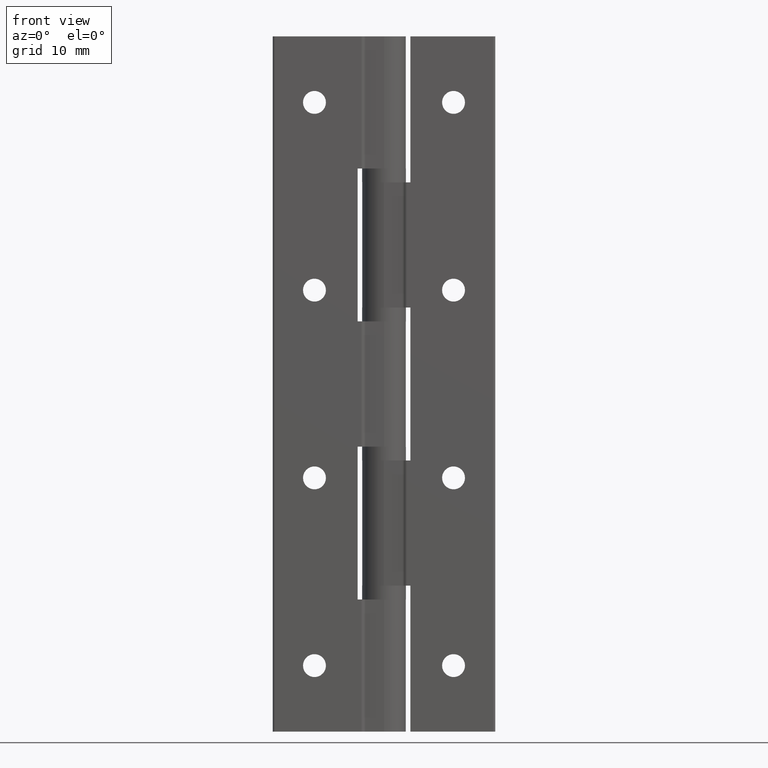
[diagram: clean part render]
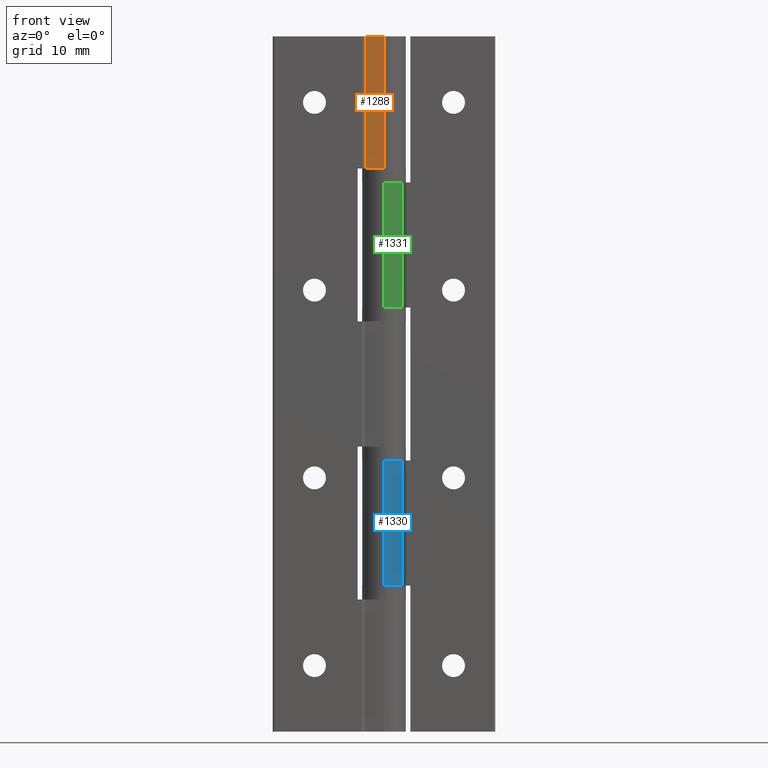
[diagram: same view with three faces highlighted in distinct colors, each labeled with its STEP entity id]
A machine part, front view with three faces highlighted in distinct colors.
Their STEP definitions:

[orange] entity #1288 — the highlighted planar face has unit normal (-0, 1, 0).
#239=FACE_OUTER_BOUND('',#322,.T.);
#322=EDGE_LOOP('',(#979,#980,#981,#982));
#448=LINE('',#2009,#539);
#456=LINE('',#2039,#547);
#461=LINE('',#2052,#552);
#462=LINE('',#2053,#553);
#539=VECTOR('',#1579,2.68220700148449);
#547=VECTOR('',#1607,19.);
#552=VECTOR('',#1622,2.68220700148449);
#553=VECTOR('',#1623,19.);
#639=VERTEX_POINT('',#2006);
#640=VERTEX_POINT('',#2008);
#652=VERTEX_POINT('',#2037);
#655=VERTEX_POINT('',#2051);
#769=EDGE_CURVE('',#640,#639,#448,.T.);
#785=EDGE_CURVE('',#652,#639,#456,.T.);
#791=EDGE_CURVE('',#655,#652,#461,.T.);
#792=EDGE_CURVE('',#640,#655,#462,.T.);
#979=ORIENTED_EDGE('',*,*,#769,.T.);
#980=ORIENTED_EDGE('',*,*,#785,.F.);
#981=ORIENTED_EDGE('',*,*,#791,.F.);
#982=ORIENTED_EDGE('',*,*,#792,.F.);
#1253=PLANE('',#1390);
#1288=ADVANCED_FACE('',(#239),#1253,.F.);
#1390=AXIS2_PLACEMENT_3D('',#2050,#1620,#1621);
#1579=DIRECTION('',(1.,3.37691169050225E-17,0.));
#1607=DIRECTION('',(0.,0.,-1.));
#1620=DIRECTION('center_axis',(-3.37691169050225E-17,1.,0.));
#1621=DIRECTION('ref_axis',(1.,3.33066907387547E-17,0.));
#1622=DIRECTION('',(1.,3.37691169050225E-17,0.));
#1623=DIRECTION('',(0.,0.,1.));
#2006=CARTESIAN_POINT('',(1.53080849893419E-16,0.200000000000001,-19.));
#2008=CARTESIAN_POINT('',(-2.68220700148449,0.200000000000001,-19.));
#2009=CARTESIAN_POINT('',(-3.44110350074225,0.200000000000001,-19.));
#2037=CARTESIAN_POINT('',(1.53080849893419E-16,0.200000000000001,0.));
#2039=CARTESIAN_POINT('',(1.53080849893419E-16,0.200000000000001,0.));
#2050=CARTESIAN_POINT('Origin',(-3.08220700148449,0.200000000000001,0.));
#2051=CARTESIAN_POINT('',(-2.68220700148449,0.200000000000001,0.));
#2052=CARTESIAN_POINT('',(-1.54110350074224,0.200000000000001,0.));
#2053=CARTESIAN_POINT('',(-2.68220700148449,0.200000000000001,0.));

[blue] entity #1330 — the highlighted planar face has unit normal (0, 1, 0).
#281=FACE_OUTER_BOUND('',#390,.T.);
#390=EDGE_LOOP('',(#1151,#1152,#1153,#1154));
#485=LINE('',#2181,#576);
#497=LINE('',#2225,#588);
#505=LINE('',#2247,#596);
#508=LINE('',#2252,#599);
#576=VECTOR('',#1778,2.68220700148449);
#588=VECTOR('',#1814,2.68220700148449);
#596=VECTOR('',#1836,18.);
#599=VECTOR('',#1843,18.);
#693=VERTEX_POINT('',#2178);
#694=VERTEX_POINT('',#2180);
#713=VERTEX_POINT('',#2222);
#714=VERTEX_POINT('',#2224);
#844=EDGE_CURVE('',#694,#693,#485,.T.);
#865=EDGE_CURVE('',#714,#713,#497,.T.);
#877=EDGE_CURVE('',#714,#693,#505,.T.);
#880=EDGE_CURVE('',#694,#713,#508,.T.);
#1151=ORIENTED_EDGE('',*,*,#844,.T.);
#1152=ORIENTED_EDGE('',*,*,#877,.F.);
#1153=ORIENTED_EDGE('',*,*,#865,.T.);
#1154=ORIENTED_EDGE('',*,*,#880,.F.);
#1271=PLANE('',#1477);
#1330=ADVANCED_FACE('',(#281),#1271,.F.);
#1477=AXIS2_PLACEMENT_3D('',#2251,#1841,#1842);
#1778=DIRECTION('',(-1.,0.,0.));
#1814=DIRECTION('',(1.,0.,0.));
#1836=DIRECTION('',(0.,0.,1.));
#1841=DIRECTION('center_axis',(0.,1.,0.));
#1842=DIRECTION('ref_axis',(1.,0.,0.));
#1843=DIRECTION('',(0.,0.,-1.));
#2178=CARTESIAN_POINT('',(-4.11193712824135E-17,-3.15,-61.));
#2180=CARTESIAN_POINT('',(2.68220700148449,-3.15,-61.));
#2181=CARTESIAN_POINT('',(1.9,-3.15,-61.));
#2222=CARTESIAN_POINT('',(2.68220700148449,-3.15,-79.));
#2224=CARTESIAN_POINT('',(-4.11193712824135E-17,-3.15,-79.));
#2225=CARTESIAN_POINT('',(-2.7235997448302,-3.15,-79.));
#2247=CARTESIAN_POINT('',(-4.11193712824135E-17,-3.15,0.));
#2251=CARTESIAN_POINT('Origin',(0.,-3.15,0.));
#2252=CARTESIAN_POINT('',(2.68220700148449,-3.15,0.));

[green] entity #1331 — the highlighted planar face has unit normal (0, 1, 0).
#282=FACE_OUTER_BOUND('',#391,.T.);
#391=EDGE_LOOP('',(#1155,#1156,#1157,#1158));
#480=LINE('',#2165,#571);
#492=LINE('',#2204,#583);
#506=LINE('',#2249,#597);
#509=LINE('',#2254,#600);
#571=VECTOR('',#1763,2.68220700148449);
#583=VECTOR('',#1797,2.68220700148449);
#597=VECTOR('',#1839,18.);
#600=VECTOR('',#1846,18.);
#687=VERTEX_POINT('',#2162);
#688=VERTEX_POINT('',#2164);
#703=VERTEX_POINT('',#2201);
#704=VERTEX_POINT('',#2203);
#836=EDGE_CURVE('',#688,#687,#480,.T.);
#855=EDGE_CURVE('',#704,#703,#492,.T.);
#878=EDGE_CURVE('',#688,#703,#506,.T.);
#881=EDGE_CURVE('',#704,#687,#509,.T.);
#1155=ORIENTED_EDGE('',*,*,#836,.T.);
#1156=ORIENTED_EDGE('',*,*,#881,.F.);
#1157=ORIENTED_EDGE('',*,*,#855,.T.);
#1158=ORIENTED_EDGE('',*,*,#878,.F.);
#1272=PLANE('',#1478);
#1331=ADVANCED_FACE('',(#282),#1272,.F.);
#1478=AXIS2_PLACEMENT_3D('',#2253,#1844,#1845);
#1763=DIRECTION('',(1.,0.,0.));
#1797=DIRECTION('',(-1.,0.,0.));
#1839=DIRECTION('',(0.,0.,1.));
#1844=DIRECTION('center_axis',(0.,1.,0.));
#1845=DIRECTION('ref_axis',(1.,0.,0.));
#1846=DIRECTION('',(0.,0.,-1.));
#2162=CARTESIAN_POINT('',(2.68220700148449,-3.15,-39.));
#2164=CARTESIAN_POINT('',(-4.11193712824135E-17,-3.15,-39.));
#2165=CARTESIAN_POINT('',(-3.97472930444162,-3.15,-39.));
#2201=CARTESIAN_POINT('',(-4.11193712824135E-17,-3.15,-21.));
#2203=CARTESIAN_POINT('',(2.68220700148449,-3.15,-21.));
#2204=CARTESIAN_POINT('',(1.9,-3.15,-21.));
#2249=CARTESIAN_POINT('',(-4.11193712824135E-17,-3.15,0.));
#2253=CARTESIAN_POINT('Origin',(0.,-3.15,0.));
#2254=CARTESIAN_POINT('',(2.68220700148449,-3.15,0.));